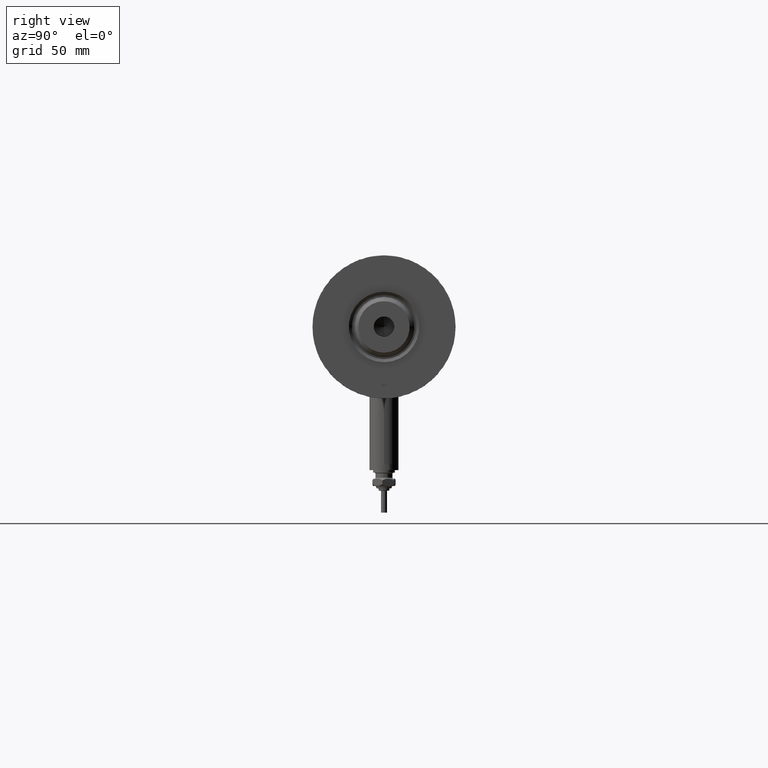
[diagram: clean part render]
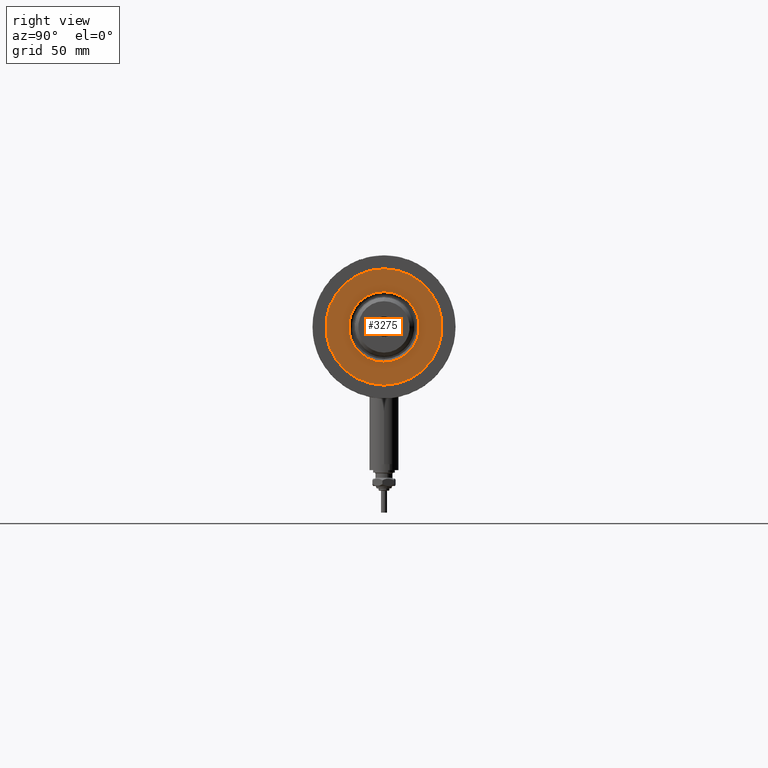
[diagram: same view with one face highlighted and labeled with its STEP entity id]
A machine part, right view. The second image highlights one B-rep face of the part: STEP entity #3275.
In plain terms, the highlighted planar face has unit normal (1, 0, -0).
Its self-contained STEP definition (entity closure, byte-faithful):
#9 = DIRECTION ( 'NONE',  ( 0.000000000000000000, 0.000000000000000000, 1.000000000000000000 ) ) ;
#219 = ORIENTED_EDGE ( 'NONE', *, *, #1827, .T. ) ;
#327 = CARTESIAN_POINT ( 'NONE',  ( -14.54999999999997939, 1.781861092759396721E-15, 41.00000000000000000 ) ) ;
#631 = DIRECTION ( 'NONE',  ( 1.000000000000000000, 0.000000000000000000, 0.000000000000000000 ) ) ;
#810 = VERTEX_POINT ( 'NONE', #3427 ) ;
#813 = EDGE_CURVE ( 'NONE', #1935, #810, #3915, .T. ) ;
#1126 = DIRECTION ( 'NONE',  ( 0.000000000000000000, 0.000000000000000000, 1.000000000000000000 ) ) ;
#1140 = CIRCLE ( 'NONE', #2864, 14.54999999999997939 ) ;
#1156 = CARTESIAN_POINT ( 'NONE',  ( 0.000000000000000000, 0.000000000000000000, 41.00000000000000000 ) ) ;
#1268 = EDGE_LOOP ( 'NONE', ( #2029, #219 ) ) ;
#1374 = PLANE ( 'NONE',  #2983 ) ;
#1427 = EDGE_CURVE ( 'NONE', #5641, #3309, #1140, .T. ) ;
#1516 = DIRECTION ( 'NONE',  ( 1.000000000000000000, 0.000000000000000000, 0.000000000000000000 ) ) ;
#1827 = EDGE_CURVE ( 'NONE', #3309, #5641, #3271, .T. ) ;
#1868 = CARTESIAN_POINT ( 'NONE',  ( 0.000000000000000000, 0.000000000000000000, 41.00000000000000000 ) ) ;
#1917 = AXIS2_PLACEMENT_3D ( 'NONE', #1868, #3286, #5106 ) ;
#1935 = VERTEX_POINT ( 'NONE', #5703 ) ;
#2029 = ORIENTED_EDGE ( 'NONE', *, *, #1427, .T. ) ;
#2469 = CARTESIAN_POINT ( 'NONE',  ( 14.54999999999997939, 0.000000000000000000, 41.00000000000000000 ) ) ;
#2864 = AXIS2_PLACEMENT_3D ( 'NONE', #5167, #4171, #1516 ) ;
#2983 = AXIS2_PLACEMENT_3D ( 'NONE', #5008, #9, #3733 ) ;
#3197 = FACE_OUTER_BOUND ( 'NONE', #3316, .T. ) ;
#3271 = CIRCLE ( 'NONE', #1917, 14.54999999999997939 ) ;
#3275 = ADVANCED_FACE ( 'NONE', ( #4496, #3197 ), #1374, .T. ) ;
#3286 = DIRECTION ( 'NONE',  ( -0.000000000000000000, -0.000000000000000000, -1.000000000000000000 ) ) ;
#3309 = VERTEX_POINT ( 'NONE', #327 ) ;
#3316 = EDGE_LOOP ( 'NONE', ( #5665, #3511 ) ) ;
#3427 = CARTESIAN_POINT ( 'NONE',  ( -24.00000000000000355, 0.000000000000000000, 41.00000000000000000 ) ) ;
#3511 = ORIENTED_EDGE ( 'NONE', *, *, #813, .T. ) ;
#3733 = DIRECTION ( 'NONE',  ( 1.000000000000000000, 0.000000000000000000, -0.000000000000000000 ) ) ;
#3915 = CIRCLE ( 'NONE', #4588, 24.00000000000000355 ) ;
#4171 = DIRECTION ( 'NONE',  ( -0.000000000000000000, -0.000000000000000000, -1.000000000000000000 ) ) ;
#4221 = DIRECTION ( 'NONE',  ( 1.000000000000000000, 0.000000000000000000, 0.000000000000000000 ) ) ;
#4314 = DIRECTION ( 'NONE',  ( 0.000000000000000000, 0.000000000000000000, 1.000000000000000000 ) ) ;
#4496 = FACE_BOUND ( 'NONE', #1268, .T. ) ;
#4588 = AXIS2_PLACEMENT_3D ( 'NONE', #4706, #4314, #4221 ) ;
#4706 = CARTESIAN_POINT ( 'NONE',  ( 0.000000000000000000, 0.000000000000000000, 41.00000000000000000 ) ) ;
#5008 = CARTESIAN_POINT ( 'NONE',  ( 0.000000000000000000, 0.000000000000000000, 41.00000000000000000 ) ) ;
#5054 = CIRCLE ( 'NONE', #5441, 24.00000000000000355 ) ;
#5106 = DIRECTION ( 'NONE',  ( 1.000000000000000000, 0.000000000000000000, 0.000000000000000000 ) ) ;
#5167 = CARTESIAN_POINT ( 'NONE',  ( 0.000000000000000000, 0.000000000000000000, 41.00000000000000000 ) ) ;
#5441 = AXIS2_PLACEMENT_3D ( 'NONE', #1156, #1126, #631 ) ;
#5458 = EDGE_CURVE ( 'NONE', #810, #1935, #5054, .T. ) ;
#5641 = VERTEX_POINT ( 'NONE', #2469 ) ;
#5665 = ORIENTED_EDGE ( 'NONE', *, *, #5458, .T. ) ;
#5703 = CARTESIAN_POINT ( 'NONE',  ( 24.00000000000000355, 2.939152317953648289E-15, 41.00000000000000000 ) ) ;